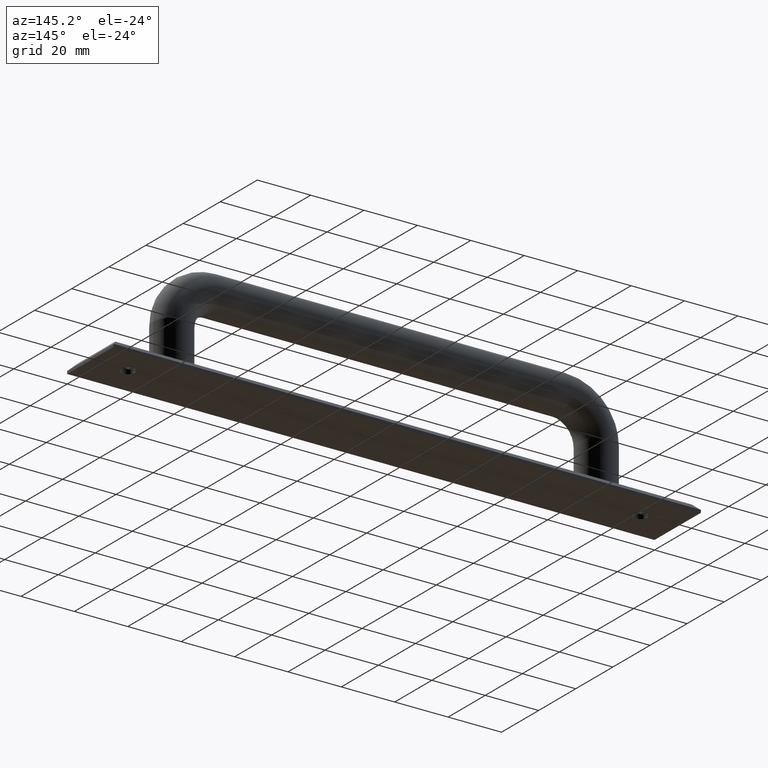
[diagram: clean part render]
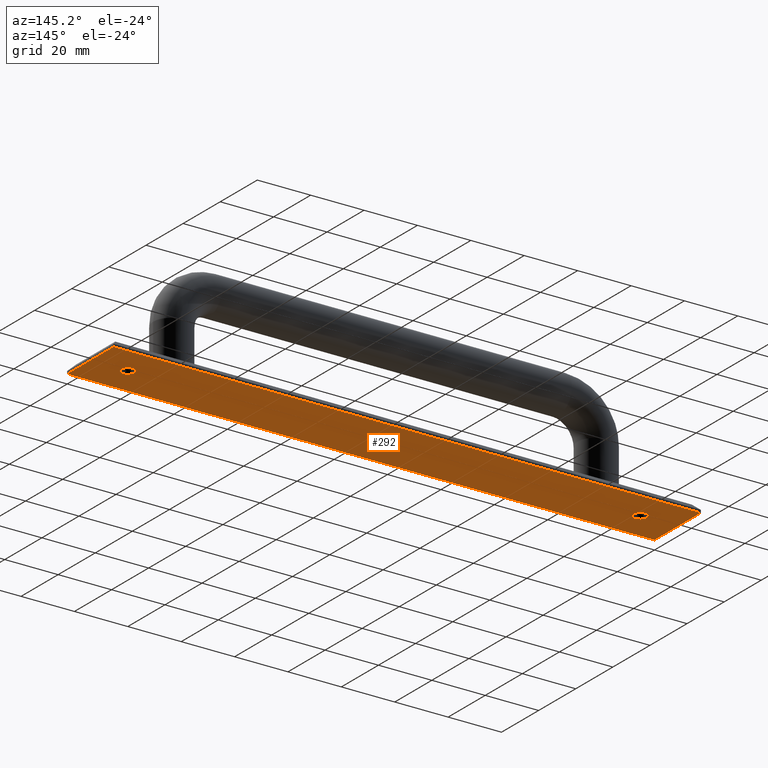
[diagram: same view with one face highlighted and labeled with its STEP entity id]
A machine part, auxiliary view. The second image highlights one B-rep face of the part: STEP entity #292.
In plain terms, the highlighted planar face has unit normal (0, 0, 1).
Its self-contained STEP definition (entity closure, byte-faithful):
#29=LINE('',#459,#49);
#32=LINE('',#465,#52);
#35=LINE('',#482,#55);
#36=LINE('',#484,#56);
#49=VECTOR('',#376,25.);
#52=VECTOR('',#381,25.);
#55=VECTOR('',#404,220.);
#56=VECTOR('',#407,220.);
#66=PLANE('',#325);
#82=FACE_BOUND('',#135,.T.);
#83=FACE_BOUND('',#136,.T.);
#102=FACE_OUTER_BOUND('',#134,.T.);
#134=EDGE_LOOP('',(#263,#264,#265,#266));
#135=EDGE_LOOP('',(#267));
#136=EDGE_LOOP('',(#268));
#146=CIRCLE('',#318,2.5);
#148=CIRCLE('',#322,2.5);
#165=VERTEX_POINT('',#456);
#166=VERTEX_POINT('',#458);
#167=VERTEX_POINT('',#462);
#168=VERTEX_POINT('',#464);
#170=VERTEX_POINT('',#473);
#172=VERTEX_POINT('',#479);
#193=EDGE_CURVE('',#165,#166,#29,.T.);
#196=EDGE_CURVE('',#167,#168,#32,.T.);
#200=EDGE_CURVE('',#170,#170,#146,.T.);
#202=EDGE_CURVE('',#172,#172,#148,.T.);
#203=EDGE_CURVE('',#166,#167,#35,.T.);
#204=EDGE_CURVE('',#168,#165,#36,.T.);
#263=ORIENTED_EDGE('',*,*,#204,.F.);
#264=ORIENTED_EDGE('',*,*,#196,.F.);
#265=ORIENTED_EDGE('',*,*,#203,.F.);
#266=ORIENTED_EDGE('',*,*,#193,.F.);
#267=ORIENTED_EDGE('',*,*,#200,.T.);
#268=ORIENTED_EDGE('',*,*,#202,.T.);
#292=ADVANCED_FACE('',(#102,#82,#83),#66,.F.);
#318=AXIS2_PLACEMENT_3D('',#474,#392,#393);
#322=AXIS2_PLACEMENT_3D('',#480,#400,#401);
#325=AXIS2_PLACEMENT_3D('',#485,#408,#409);
#376=DIRECTION('',(0.,1.,0.));
#381=DIRECTION('',(0.,-1.,0.));
#392=DIRECTION('center_axis',(0.,0.,1.));
#393=DIRECTION('ref_axis',(1.,0.,0.));
#400=DIRECTION('center_axis',(0.,0.,1.));
#401=DIRECTION('ref_axis',(1.,0.,0.));
#404=DIRECTION('',(-1.,0.,0.));
#407=DIRECTION('',(1.,1.79286569368412E-32,0.));
#408=DIRECTION('center_axis',(0.,0.,1.));
#409=DIRECTION('ref_axis',(1.,0.,0.));
#456=CARTESIAN_POINT('',(220.,3.94430452610506E-30,0.));
#458=CARTESIAN_POINT('',(220.,25.,0.));
#459=CARTESIAN_POINT('',(220.,3.94430452610506E-30,0.));
#462=CARTESIAN_POINT('',(0.,25.,0.));
#464=CARTESIAN_POINT('',(0.,0.,0.));
#465=CARTESIAN_POINT('',(0.,25.,0.));
#473=CARTESIAN_POINT('',(11.5,12.5,0.));
#474=CARTESIAN_POINT('Origin',(14.,12.5,0.));
#479=CARTESIAN_POINT('',(203.5,12.5,0.));
#480=CARTESIAN_POINT('Origin',(206.,12.5,0.));
#482=CARTESIAN_POINT('',(220.,25.,0.));
#484=CARTESIAN_POINT('',(0.,0.,0.));
#485=CARTESIAN_POINT('Origin',(110.,12.5,0.));